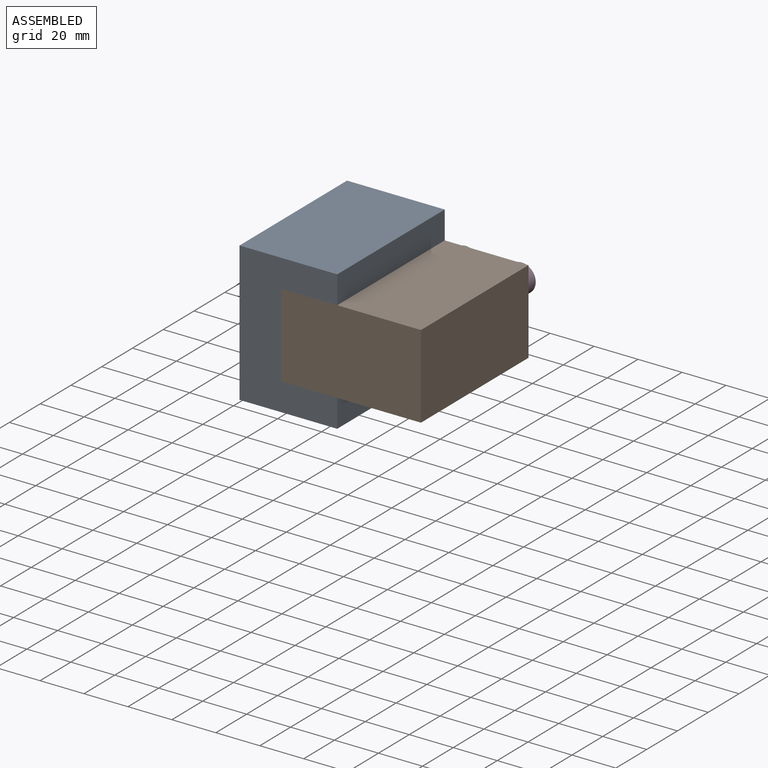
[diagram: assembled view]
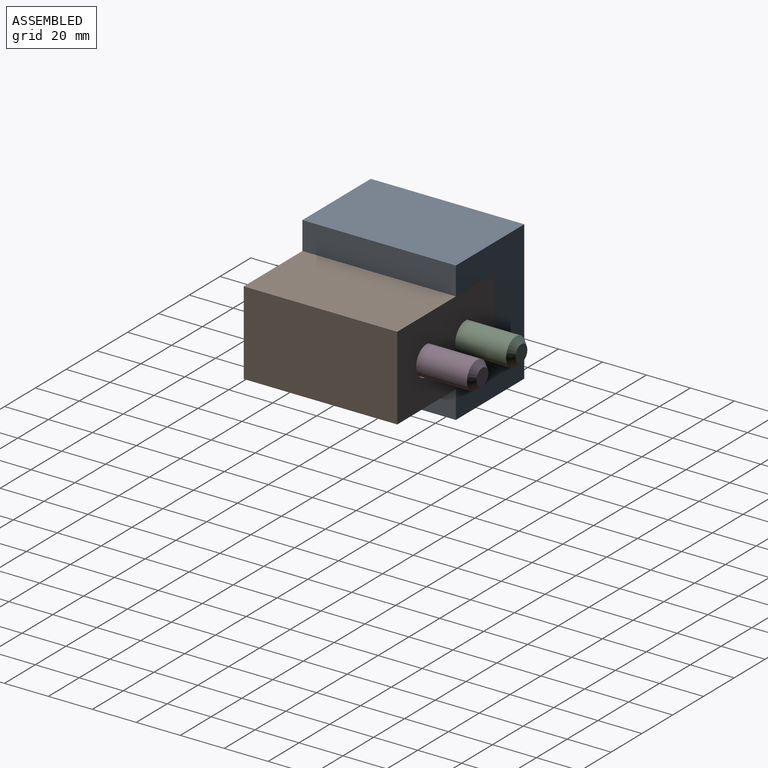
[diagram: assembled view, second angle]
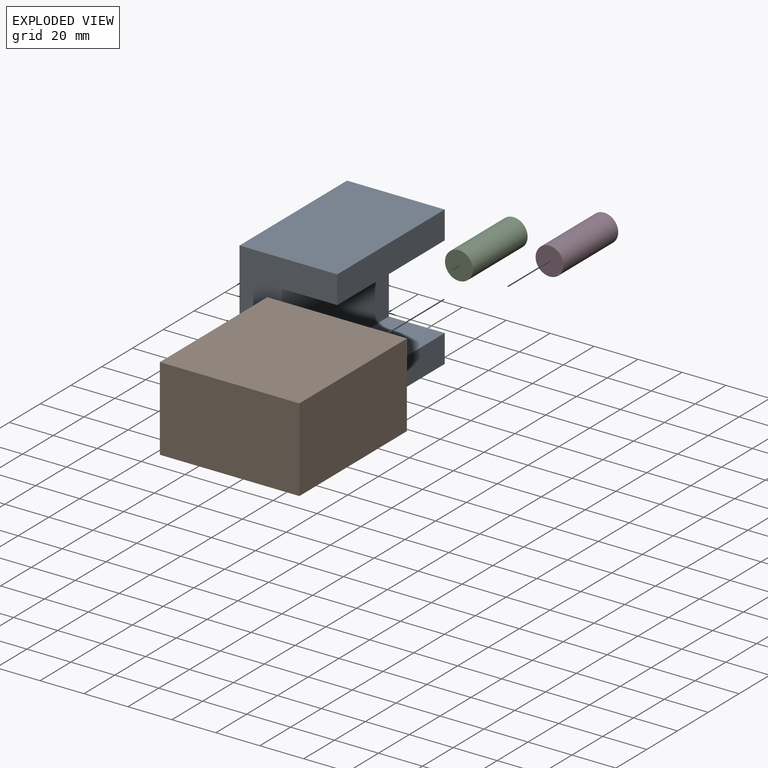
[diagram: exploded view]
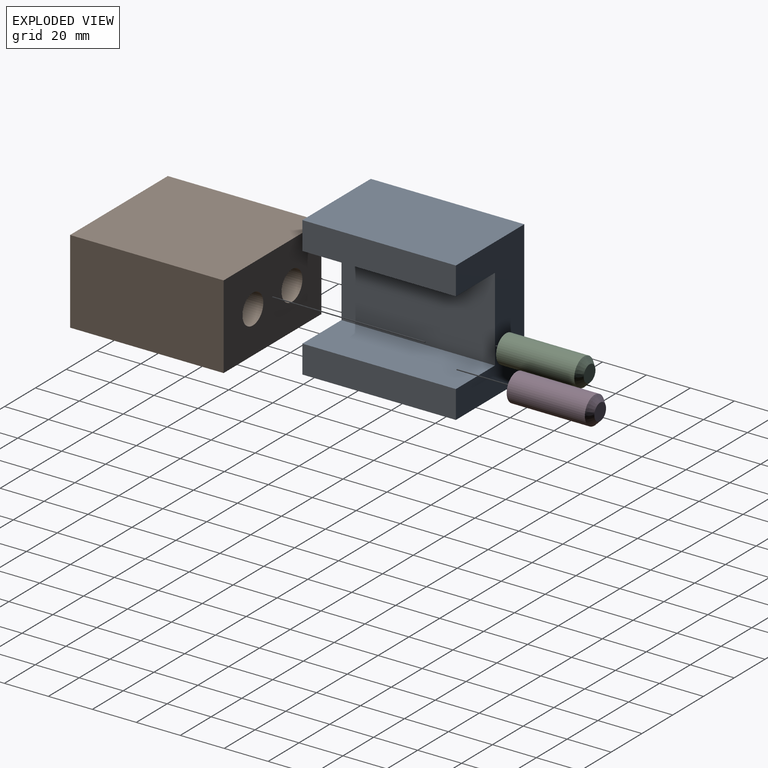
[diagram: exploded view, second angle]
ASSEMBLY  parts=4 mates=5
PART A: 10 faces, bbox 69.9x44.5x63.5 mm
  f0: plane 69.85x12.7mm, normal (0,-1,0), area 887.1mm2, adj f1,f7,f8,f9
  f1: plane 69.85x25.4mm, normal (0,0,-1), area 1774.2mm2, adj f0,f2,f8,f9
  f2: plane 69.85x38.1mm, normal (0,-1,0), area 2661.3mm2, adj f1,f3,f8,f9
  f3: plane 69.85x25.4mm, normal (0,0,1), area 1774.2mm2, adj f2,f4,f8,f9
  f4: plane 69.85x12.7mm, normal (0,-1,0), area 887.1mm2, adj f3,f5,f8,f9
  f5: plane 69.85x44.45mm, normal (0,0,-1), area 3104.8mm2, adj f4,f6,f8,f9
  f6: plane 69.85x63.5mm, normal (0,1,0), area 4435.5mm2, adj f5,f7,f8,f9
  f7: plane 69.85x44.45mm, normal (0,0,1), area 3104.8mm2, adj f0,f6,f8,f9
  f8: plane 63.5x44.45mm, normal (1,0,0), area 1854.8mm2, adj f0,f1,f2,f3,f4,f5,f6,f7
  f9: plane 63.5x44.45mm, normal (-1,0,0), area 1854.8mm2, adj f0,f1,f2,f3,f4,f5,f6,f7
PART B: 10 faces, bbox 63.5x69.9x38.1 mm
  f0: plane 69.85x38.1mm, normal (1,0,0), area 2661.3mm2, adj f1,f3,f4,f5
  f1: plane 69.85x63.5mm, normal (0,0,1), area 4435.5mm2, adj f0,f2,f4,f5
  f2: plane 69.85x38.1mm, normal (-1,0,0), area 2661.3mm2, adj f1,f3,f4,f5
  f3: plane 69.85x63.5mm, normal (0,0,-1), area 4435.5mm2, adj f0,f2,f4,f5
  f4: plane 63.5x38.1mm, normal (0,-1,0), area 2419.3mm2, adj f0,f1,f2,f3
  f5: plane 63.5x38.1mm, normal (0,1,0), area 2133.4mm2, adj f0,f1,f2,f3,f7,f9
  f6: cone r=0mm half-angle=59deg, axis (0,1,0), area 166.8mm2, adj f7
  f7: cylinder r=6.75mm len=13.49mm, axis (0,1,0), area 538.3mm2, adj f5,f6
  f8: cone r=0mm half-angle=59deg, axis (0,1,0), area 166.8mm2, adj f9
  f9: cylinder r=6.75mm len=13.49mm, axis (0,1,0), area 538.3mm2, adj f5,f8
PART C: 4 faces, bbox 38.1x12.7x12.7 mm
  f0: plane 12.7x12.7mm, normal (-1,0,0), area 126.7mm2, adj f2
  f1: plane 7.62x7.62mm, normal (1,0,0), area 45.6mm2, adj f3
  f2: cylinder r=6.35mm len=35.56mm, axis (-1,0,0), area 1418.8mm2, adj f0,f3
  f3: cone r=6.35mm half-angle=45deg, axis (-1,0,0), area 114.7mm2, adj f1,f2
PART D: same geometry as C
PLACE A rot(axis=(0.71,-0.71,0),180deg) t=(-31.75,0,0)mm
PLACE B at identity fixed
PLACE C rot(axis=(0.58,0.58,0.58),120deg) t=(-12.7,22.22,0)mm
PLACE D rot(axis=(0.58,0.58,0.58),120deg) t=(12.7,22.22,0)mm
MATE fastened B.f8 <-> D.f2  axis (0,1,0) through (12.7,22.22,0)mm
MATE planar B.f1 <-> A.f3  axis (0,0,1) through (0,0,19.05)mm
MATE planar B.f4 <-> A.f8  axis (0,-1,0) through (0,-34.93,0)mm
MATE fastened B.f6 <-> C.f2  axis (0,1,0) through (-12.7,22.22,0)mm
MATE planar A.f2 <-> B.f2  axis (1,0,0) through (-31.75,0,0)mm
